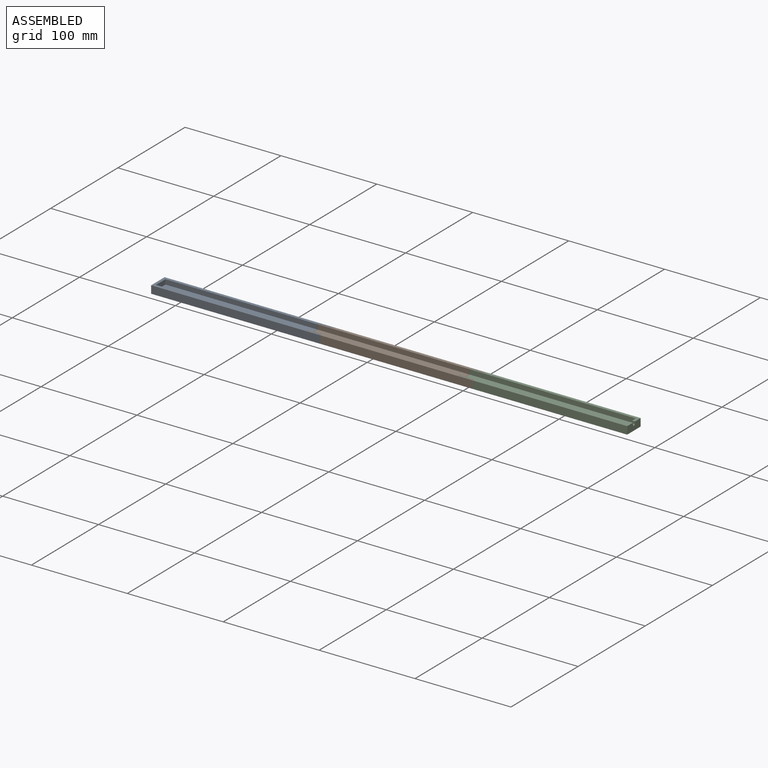
[diagram: assembled view]
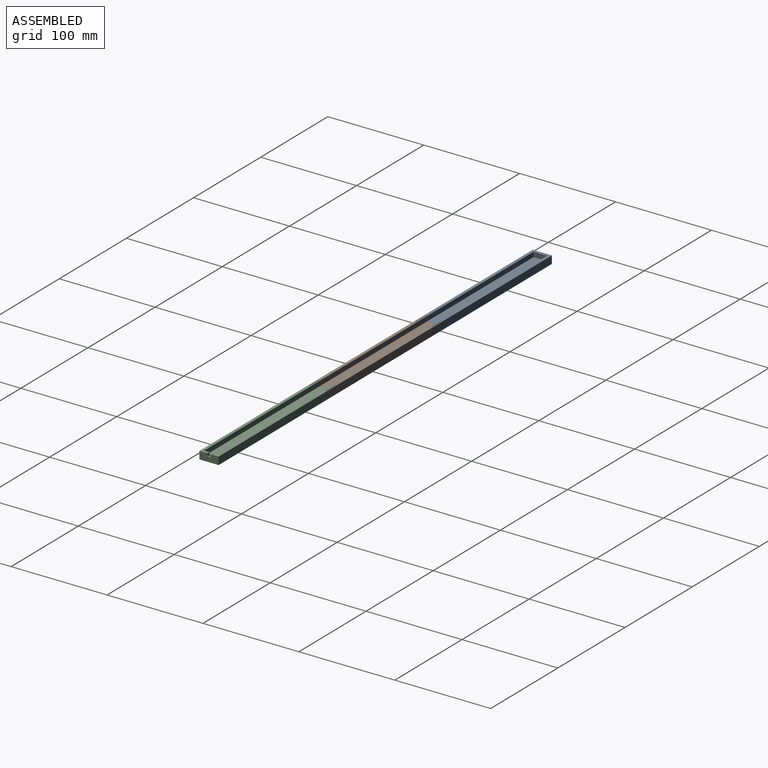
[diagram: assembled view, second angle]
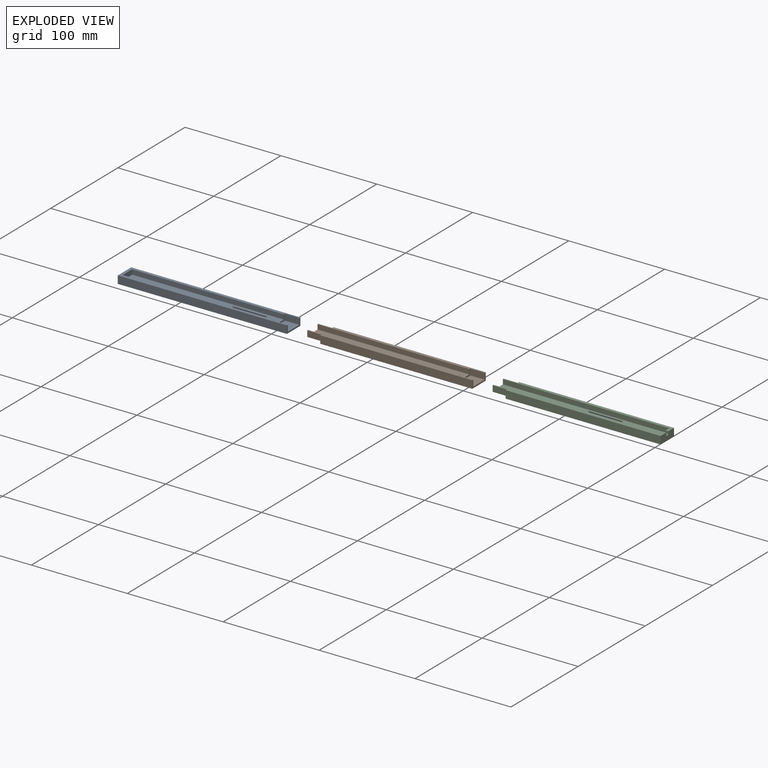
[diagram: exploded view]
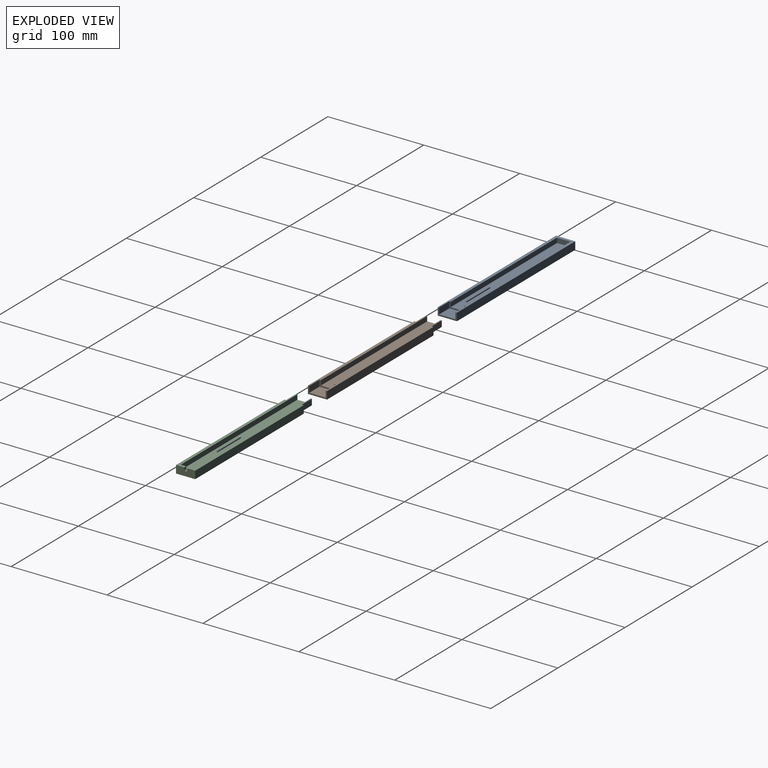
[diagram: exploded view, second angle]
ASSEMBLY  parts=3 mates=2
PART A: 14 faces, bbox 176.3x20x8 mm
  f0: plane 158.33x5mm, normal (0,1,0), area 791.7mm2, adj f1,f3,f8,f13
  f1: plane 176.33x20mm, normal (0,0,1), area 1055mm2, adj f0,f2,f4,f6,f7,f8,f9,f10
  f2: plane 158.33x5mm, normal (0,-1,0), area 791.7mm2, adj f1,f3,f8,f13
  f3: plane 158.33x14mm, normal (0,0,1), area 2216.7mm2, adj f0,f2,f8,f13
  f4: plane 176.33x8mm, normal (0,-1,0), area 1410.7mm2, adj f1,f5,f7,f9
  f5: plane 176.33x20mm, normal (0,0,-1), area 3526.7mm2, adj f4,f6,f7,f9
  f6: plane 176.33x8mm, normal (0,1,0), area 1410.7mm2, adj f1,f5,f7,f9
  f7: plane 20x8mm, normal (1,0,0), area 49.5mm2, adj f1,f4,f5,f6,f10,f11,f12
  f8: plane 14x5mm, normal (1,0,0), area 70mm2, adj f0,f1,f2,f3
  f9: plane 20x8mm, normal (-1,0,0), area 160mm2, adj f1,f4,f5,f6
  f10: plane 15x6.5mm, normal (0,1,0), area 97.5mm2, adj f1,f7,f11,f13
  f11: plane 17x15mm, normal (0,0,1), area 255mm2, adj f7,f10,f12,f13
  f12: plane 15x6.5mm, normal (0,-1,0), area 97.5mm2, adj f1,f7,f11,f13
  f13: plane 17x6.5mm, normal (1,0,0), area 40.5mm2, adj f0,f1,f2,f3,f10,f11,f12
PART B: 18 faces, bbox 173.3x20x8 mm
  f0: plane 173.33x3mm, normal (0,0,1), area 470.9mm2, adj f1,f4,f8,f9,f11,f13,f14,f17
  f1: plane 158.33x5mm, normal (0,1,0), area 791.7mm2, adj f0,f3,f9,f17
  f2: plane 158.33x5mm, normal (0,-1,0), area 791.7mm2, adj f3,f7,f9,f17
  f3: plane 158.33x14mm, normal (0,0,1), area 2216.7mm2, adj f1,f2,f9,f17
  f4: plane 158.53x8mm, normal (0,-1,0), area 1268.3mm2, adj f0,f5,f8,f13
  f5: plane 158.53x20mm, normal (0,0,-1), area 3170.7mm2, adj f4,f6,f8,f13
  f6: plane 158.53x8mm, normal (0,1,0), area 1268.3mm2, adj f5,f7,f8,f13
  f7: plane 173.33x3mm, normal (0,0,1), area 470.9mm2, adj f2,f6,f8,f9,f10,f13,f16,f17
  f8: plane 20x8mm, normal (1,0,0), area 49.5mm2, adj f0,f4,f5,f6,f7,f14,f15,f16
  f9: plane 16.4x6.2mm, normal (-1,0,0), area 31.7mm2, adj f0,f1,f2,f3,f7,f10,f11,f12
  f10: plane 14.8x6.2mm, normal (0,1,0), area 91.8mm2, adj f7,f9,f12,f13
  f11: plane 14.8x6.2mm, normal (0,-1,0), area 91.8mm2, adj f0,f9,f12,f13
  f12: plane 16.4x14.8mm, normal (0,0,-1), area 242.7mm2, adj f9,f10,f11,f13
  f13: plane 20x8mm, normal (-1,0,0), area 58.3mm2, adj f0,f4,f5,f6,f7,f10,f11,f12
  f14: plane 15x6.5mm, normal (0,1,0), area 97.5mm2, adj f0,f8,f15,f17
  f15: plane 17x15mm, normal (0,0,1), area 255mm2, adj f8,f14,f16,f17
  f16: plane 15x6.5mm, normal (0,-1,0), area 97.5mm2, adj f7,f8,f15,f17
  f17: plane 17x6.5mm, normal (1,0,0), area 40.5mm2, adj f0,f1,f2,f3,f7,f14,f15,f16
PART C: 18 faces, bbox 176.3x20x8 mm
  f0: plane 173.33x5mm, normal (0,1,0), area 866.7mm2, adj f1,f7,f8,f17
  f1: plane 176.33x8.5mm, normal (0,0,1), area 518.9mm2, adj f0,f2,f8,f10,f12,f13,f16,f17
  f2: plane 161.53x8mm, normal (0,-1,0), area 1292.3mm2, adj f1,f3,f12,f16
  f3: plane 161.53x20mm, normal (0,0,-1), area 3230.7mm2, adj f2,f4,f12,f16
  f4: plane 161.53x8mm, normal (0,1,0), area 1292.3mm2, adj f3,f5,f12,f16
  f5: plane 176.33x8.5mm, normal (0,0,1), area 518.9mm2, adj f4,f6,f8,f9,f12,f14,f16,f17
  f6: plane 173.33x5mm, normal (0,-1,0), area 866.7mm2, adj f5,f7,f8,f17
  f7: plane 173.33x14mm, normal (0,0,1), area 2426.7mm2, adj f0,f6,f8,f17
  f8: plane 16.4x6.2mm, normal (-1,0,0), area 31.7mm2, adj f0,f1,f5,f6,f7,f9,f10,f11
  f9: plane 14.8x6.2mm, normal (0,1,0), area 91.8mm2, adj f5,f8,f11,f12
  f10: plane 14.8x6.2mm, normal (0,-1,0), area 91.8mm2, adj f1,f8,f11,f12
  f11: plane 16.4x14.8mm, normal (0,0,-1), area 242.7mm2, adj f8,f9,f10,f12
  f12: plane 20x8mm, normal (-1,0,0), area 58.3mm2, adj f1,f2,f3,f4,f5,f9,f10,f11
  f13: plane 3x1.92mm, normal (0,1,0), area 5.7mm2, adj f1,f15,f16,f17
  f14: plane 3x1.92mm, normal (0,-1,0), area 5.7mm2, adj f5,f15,f16,f17
  f15: cylinder r=1.5mm len=3mm, axis (-1,0,0), area 14.1mm2, adj f13,f14,f16,f17
  f16: plane 20x8mm, normal (1,0,0), area 150.7mm2, adj f1,f2,f3,f4,f5,f13,f14,f15
  f17: plane 14x5mm, normal (-1,0,0), area 60.7mm2, adj f0,f1,f5,f6,f7,f13,f14,f15
PLACE A t=(-158.53,25,0)mm
PLACE B at identity
PLACE C t=(158.53,-25,0)mm
MATE fastened C.f12 <-> B.f8  axis (-1,0,0) through (86.67,0,-4)mm
MATE fastened A.f7 <-> B.f13  axis (1,0,0) through (-71.87,0,-4)mm
